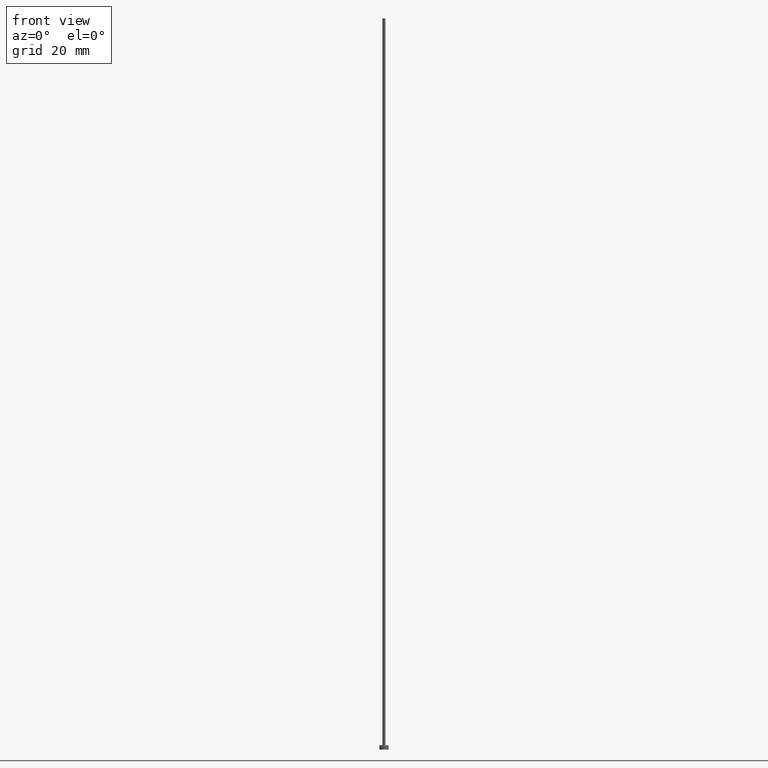
[diagram: clean part render]
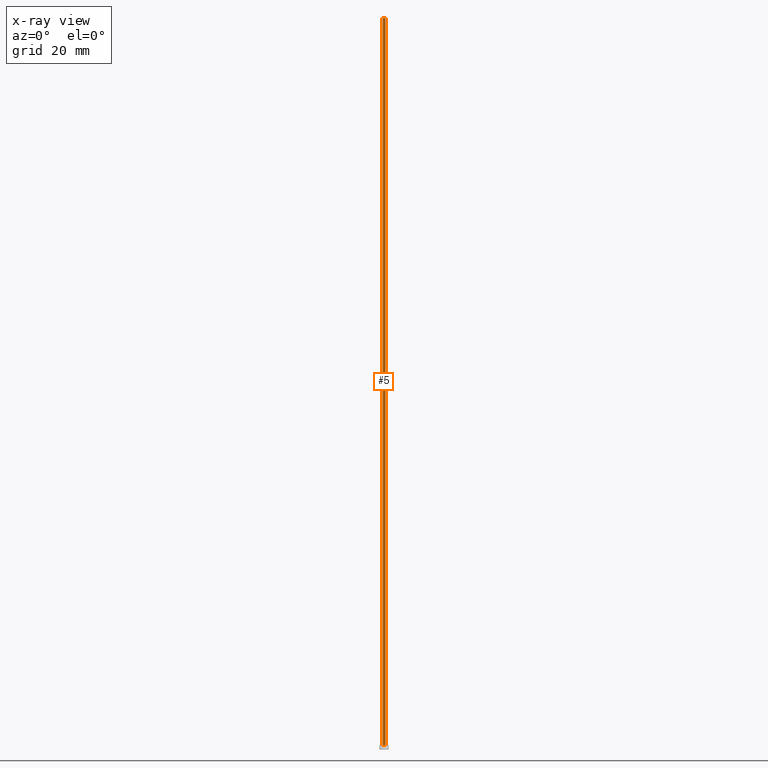
[diagram: x-ray — body ghosted, one internal face saturated and labeled with its STEP entity id]
A machine part, front view, then the same camera in x-ray: the body is ghosted and one INTERNAL B-rep face — a face not visible from any outside direction — is saturated and labeled: STEP entity #5.
In plain terms, the highlighted cylindrical surface (edge-blend (fillet) strip) has radius 0.4 mm, axis along (-0, -0, -1).
Its self-contained STEP definition (entity closure, byte-faithful):
#5 = ADVANCED_FACE ( 'NONE', ( #144 ), #219, .T. ) ;
#14 = VECTOR ( 'NONE', #132, 1000.000000000000000 ) ;
#15 = CARTESIAN_POINT ( 'NONE',  ( -0.4000000000000000222, 0.000000000000000000, 200.0000000000000000 ) ) ;
#24 = CARTESIAN_POINT ( 'NONE',  ( 0.000000000000000000, 0.000000000000000000, 200.0000000000000000 ) ) ;
#28 = DIRECTION ( 'NONE',  ( 0.000000000000000000, 0.000000000000000000, 1.000000000000000000 ) ) ;
#30 = CARTESIAN_POINT ( 'NONE',  ( -0.4000000000000000222, 0.000000000000000000, 1.199999999999999956 ) ) ;
#31 = AXIS2_PLACEMENT_3D ( 'NONE', #24, #204, #164 ) ;
#46 = ORIENTED_EDGE ( 'NONE', *, *, #240, .T. ) ;
#55 = CARTESIAN_POINT ( 'NONE',  ( 0.000000000000000000, 0.000000000000000000, 200.0000000000000000 ) ) ;
#57 = CARTESIAN_POINT ( 'NONE',  ( 0.4000000000000000222, 4.898587196589413075E-17, 200.0000000000000000 ) ) ;
#58 = DIRECTION ( 'NONE',  ( 1.000000000000000000, 0.000000000000000000, 0.000000000000000000 ) ) ;
#59 = CIRCLE ( 'NONE', #143, 0.4000000000000000222 ) ;
#89 = AXIS2_PLACEMENT_3D ( 'NONE', #55, #243, #58 ) ;
#91 = DIRECTION ( 'NONE',  ( 1.000000000000000000, 0.000000000000000000, 0.000000000000000000 ) ) ;
#105 = VERTEX_POINT ( 'NONE', #154 ) ;
#123 = ORIENTED_EDGE ( 'NONE', *, *, #233, .T. ) ;
#125 = EDGE_LOOP ( 'NONE', ( #241, #123, #46, #220 ) ) ;
#127 = VERTEX_POINT ( 'NONE', #57 ) ;
#132 = DIRECTION ( 'NONE',  ( -0.000000000000000000, -0.000000000000000000, -1.000000000000000000 ) ) ;
#133 = CARTESIAN_POINT ( 'NONE',  ( 0.4000000000000000222, 4.898587196589413075E-17, 200.0000000000000000 ) ) ;
#135 = CARTESIAN_POINT ( 'NONE',  ( -0.4000000000000000222, 0.000000000000000000, 200.0000000000000000 ) ) ;
#143 = AXIS2_PLACEMENT_3D ( 'NONE', #206, #28, #91 ) ;
#144 = FACE_OUTER_BOUND ( 'NONE', #125, .T. ) ;
#146 = VERTEX_POINT ( 'NONE', #30 ) ;
#147 = EDGE_CURVE ( 'NONE', #208, #146, #246, .T. ) ;
#154 = CARTESIAN_POINT ( 'NONE',  ( 0.4000000000000000222, 4.898587196589413075E-17, 1.199999999999999956 ) ) ;
#164 = DIRECTION ( 'NONE',  ( -1.000000000000000000, 0.000000000000000000, 0.000000000000000000 ) ) ;
#179 = LINE ( 'NONE', #133, #202 ) ;
#201 = CIRCLE ( 'NONE', #89, 0.4000000000000000222 ) ;
#202 = VECTOR ( 'NONE', #212, 1000.000000000000000 ) ;
#204 = DIRECTION ( 'NONE',  ( -0.000000000000000000, -0.000000000000000000, -1.000000000000000000 ) ) ;
#206 = CARTESIAN_POINT ( 'NONE',  ( 0.000000000000000000, 0.000000000000000000, 1.199999999999999956 ) ) ;
#208 = VERTEX_POINT ( 'NONE', #15 ) ;
#212 = DIRECTION ( 'NONE',  ( -0.000000000000000000, -0.000000000000000000, -1.000000000000000000 ) ) ;
#219 = CYLINDRICAL_SURFACE ( 'NONE', #31, 0.4000000000000000222 ) ;
#220 = ORIENTED_EDGE ( 'NONE', *, *, #147, .F. ) ;
#225 = EDGE_CURVE ( 'NONE', #127, #208, #201, .T. ) ;
#233 = EDGE_CURVE ( 'NONE', #127, #105, #179, .T. ) ;
#240 = EDGE_CURVE ( 'NONE', #105, #146, #59, .T. ) ;
#241 = ORIENTED_EDGE ( 'NONE', *, *, #225, .F. ) ;
#243 = DIRECTION ( 'NONE',  ( 0.000000000000000000, 0.000000000000000000, 1.000000000000000000 ) ) ;
#246 = LINE ( 'NONE', #135, #14 ) ;